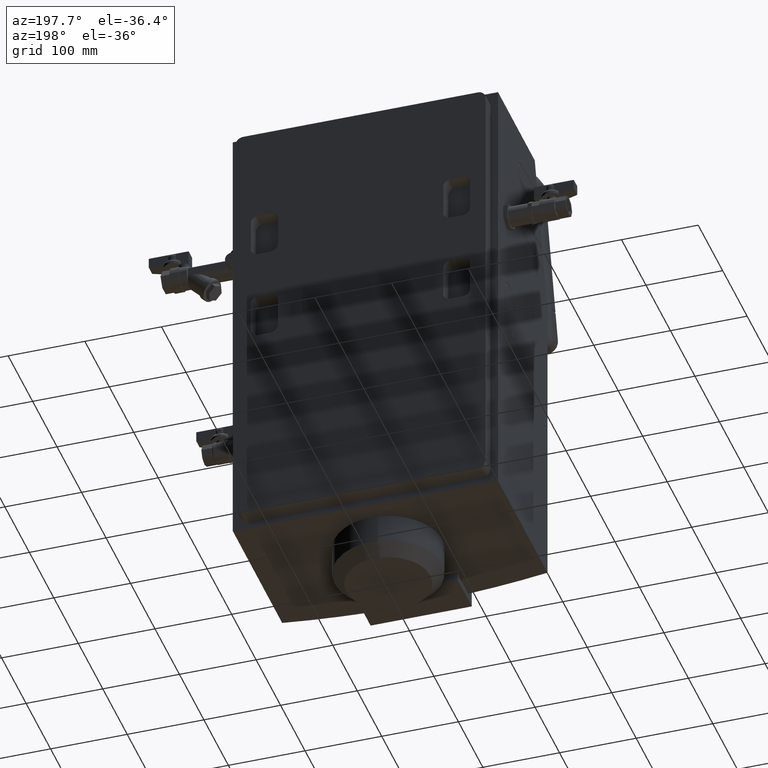
[diagram: clean part render]
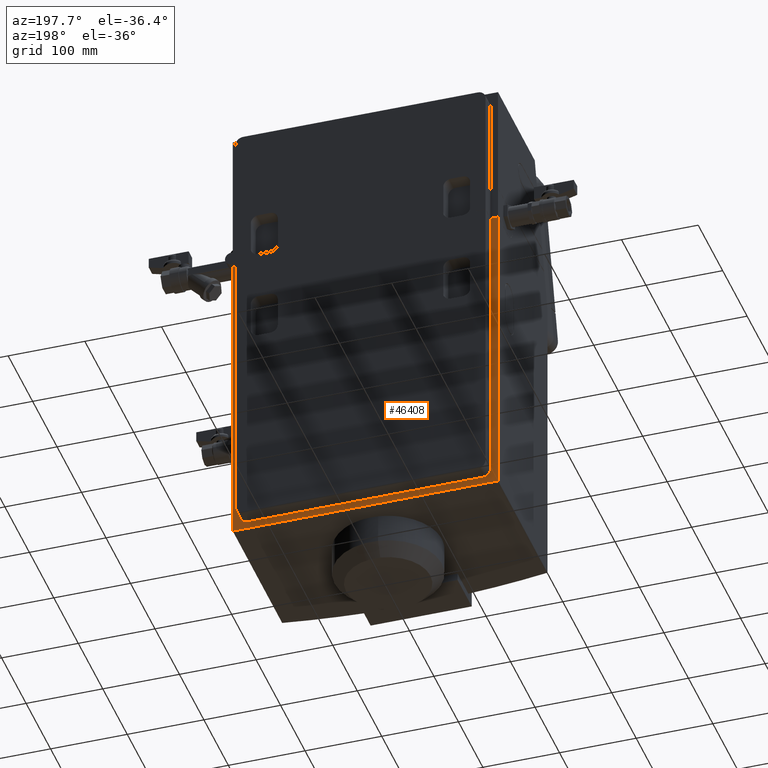
[diagram: same view with one face highlighted and labeled with its STEP entity id]
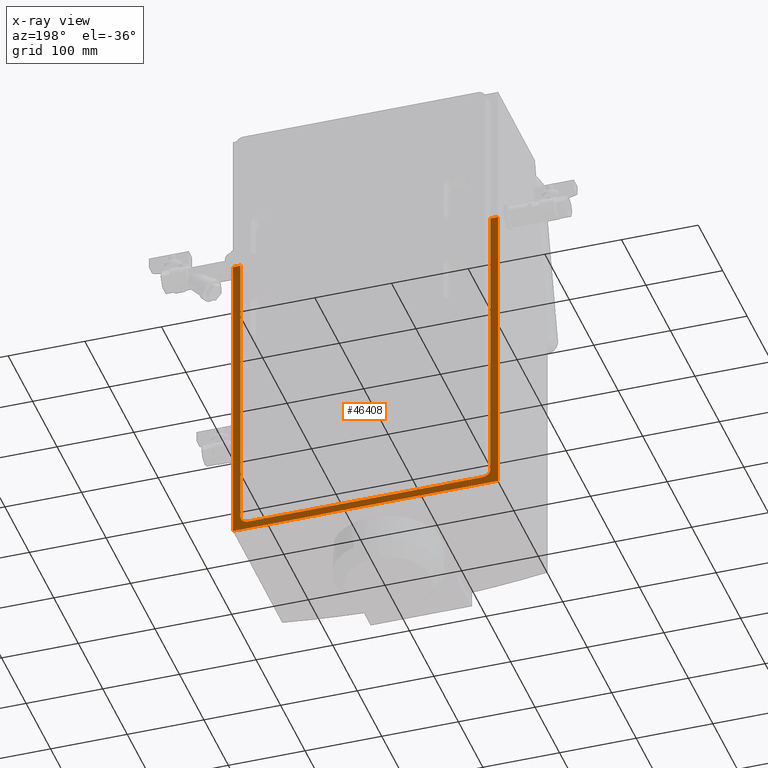
[diagram: x-ray of the same camera — body ghosted, the highlighted face saturated]
A machine part, auxiliary view. The second image highlights one B-rep face of the part: STEP entity #46408.
The next image is the same camera in x-ray: the body ghosted, the highlighted face saturated — about 0% of this face is hidden behind the body in this view.
In plain terms, the highlighted face is a freeform B-spline surface patch.
Its self-contained STEP definition (entity closure, byte-faithful):
#43925=CARTESIAN_POINT('',(-172.99999995250027,-20.0,-182.72999997087527));
#43926=VERTEX_POINT('',#43925);
#43933=CARTESIAN_POINT('',(-173.0,-20.0,-590.0));
#43934=VERTEX_POINT('',#43933);
#43935=CARTESIAN_POINT('',(-173.0,-20.0,-182.72999997087527));
#43936=DIRECTION('',(0.0,0.0,-1.0));
#43937=VECTOR('',#43936,407.27000002912473);
#43938=LINE('',#43935,#43937);
#43939=EDGE_CURVE('',#43926,#43934,#43938,.T.);
#45672=CARTESIAN_POINT('',(172.99999995250027,-20.0,-182.72999997087527));
#45673=VERTEX_POINT('',#45672);
#45680=CARTESIAN_POINT('',(163.0,-20.0,-182.72999997087527));
#45681=VERTEX_POINT('',#45680);
#45682=CARTESIAN_POINT('',(163.0,-20.0,-182.72999997087527));
#45683=DIRECTION('',(1.0,0.0,0.0));
#45684=VECTOR('',#45683,9.999999952500275);
#45685=LINE('',#45682,#45684);
#45686=EDGE_CURVE('',#45681,#45673,#45685,.T.);
#45892=CARTESIAN_POINT('',(-163.0,-20.0,-182.72999997087527));
#45893=VERTEX_POINT('',#45892);
#45900=CARTESIAN_POINT('',(-172.99999995250027,-20.0,-182.72999997087527));
#45901=DIRECTION('',(1.0,0.0,0.0));
#45902=VECTOR('',#45901,9.999999952500275);
#45903=LINE('',#45900,#45902);
#45904=EDGE_CURVE('',#43926,#45893,#45903,.T.);
#45918=CARTESIAN_POINT('',(163.0,-20.0,-570.0));
#45919=VERTEX_POINT('',#45918);
#45920=CARTESIAN_POINT('',(163.0,-20.0,-182.72999997087527));
#45921=DIRECTION('',(0.0,0.0,-1.0));
#45922=VECTOR('',#45921,387.27000002912473);
#45923=LINE('',#45920,#45922);
#45924=EDGE_CURVE('',#45681,#45919,#45923,.T.);
#46317=CARTESIAN_POINT('',(-163.0,-20.0,-570.0));
#46318=VERTEX_POINT('',#46317);
#46325=CARTESIAN_POINT('',(-163.0,-20.0,-182.72999997087527));
#46326=DIRECTION('',(0.0,0.0,-1.0));
#46327=VECTOR('',#46326,387.27000002912473);
#46328=LINE('',#46325,#46327);
#46329=EDGE_CURVE('',#45893,#46318,#46328,.T.);
#46358=CARTESIAN_POINT('',(173.0,-20.0,-590.0));
#46359=CARTESIAN_POINT('',(173.0,-20.0,-182.72999997087527));
#46360=CARTESIAN_POINT('',(-173.0,-20.0,-590.0));
#46361=CARTESIAN_POINT('',(-173.0,-20.0,-182.72999997087527));
#46362=B_SPLINE_SURFACE_WITH_KNOTS('',1,1,((#46358,#46360),(#46359,#46361)),.UNSPECIFIED.,.F.,.F.,.U.,(2,2),(2,2),(0.0,407.27000002912473),(0.0,346.0),.UNSPECIFIED.);
#46363=ORIENTED_EDGE('',*,*,#45686,.T.);
#46364=CARTESIAN_POINT('',(173.0,-20.0,-590.0));
#46365=VERTEX_POINT('',#46364);
#46366=CARTESIAN_POINT('',(173.0,-20.0,-182.72999997087527));
#46367=DIRECTION('',(0.0,0.0,-1.0));
#46368=VECTOR('',#46367,407.27000002912473);
#46369=LINE('',#46366,#46368);
#46370=EDGE_CURVE('',#45673,#46365,#46369,.T.);
#46371=ORIENTED_EDGE('',*,*,#46370,.T.);
#46372=CARTESIAN_POINT('',(173.0,-20.0,-590.0));
#46373=DIRECTION('',(-1.0,0.0,0.0));
#46374=VECTOR('',#46373,346.0);
#46375=LINE('',#46372,#46374);
#46376=EDGE_CURVE('',#46365,#43934,#46375,.T.);
#46377=ORIENTED_EDGE('',*,*,#46376,.T.);
#46378=ORIENTED_EDGE('',*,*,#43939,.F.);
#46379=ORIENTED_EDGE('',*,*,#45904,.T.);
#46380=ORIENTED_EDGE('',*,*,#46329,.T.);
#46381=CARTESIAN_POINT('',(-153.0,-20.0,-580.0));
#46382=VERTEX_POINT('',#46381);
#46383=CARTESIAN_POINT('',(-153.0,-20.0,-570.0));
#46384=DIRECTION('',(0.0,1.0,0.0));
#46385=DIRECTION('',(-0.707106781186547,0.0,-0.707106781186547));
#46386=AXIS2_PLACEMENT_3D('',#46383,#46384,#46385);
#46387=CIRCLE('',#46386,9.999999999999998);
#46388=EDGE_CURVE('',#46382,#46318,#46387,.T.);
#46389=ORIENTED_EDGE('',*,*,#46388,.F.);
#46390=CARTESIAN_POINT('',(153.0,-20.0,-580.0));
#46391=VERTEX_POINT('',#46390);
#46392=CARTESIAN_POINT('',(-153.0,-20.0,-580.0));
#46393=DIRECTION('',(1.0,0.0,0.0));
#46394=VECTOR('',#46393,306.0);
#46395=LINE('',#46392,#46394);
#46396=EDGE_CURVE('',#46382,#46391,#46395,.T.);
#46397=ORIENTED_EDGE('',*,*,#46396,.T.);
#46398=CARTESIAN_POINT('',(153.0,-20.0,-570.0));
#46399=DIRECTION('',(0.0,1.0,0.0));
#46400=DIRECTION('',(0.707106781186547,0.0,-0.707106781186547));
#46401=AXIS2_PLACEMENT_3D('',#46398,#46399,#46400);
#46402=CIRCLE('',#46401,9.999999999999998);
#46403=EDGE_CURVE('',#45919,#46391,#46402,.T.);
#46404=ORIENTED_EDGE('',*,*,#46403,.F.);
#46405=ORIENTED_EDGE('',*,*,#45924,.F.);
#46406=EDGE_LOOP('',(#46363,#46371,#46377,#46378,#46379,#46380,#46389,#46397,#46404,#46405));
#46407=FACE_OUTER_BOUND('',#46406,.T.);
#46408=ADVANCED_FACE('',(#46407),#46362,.F.);